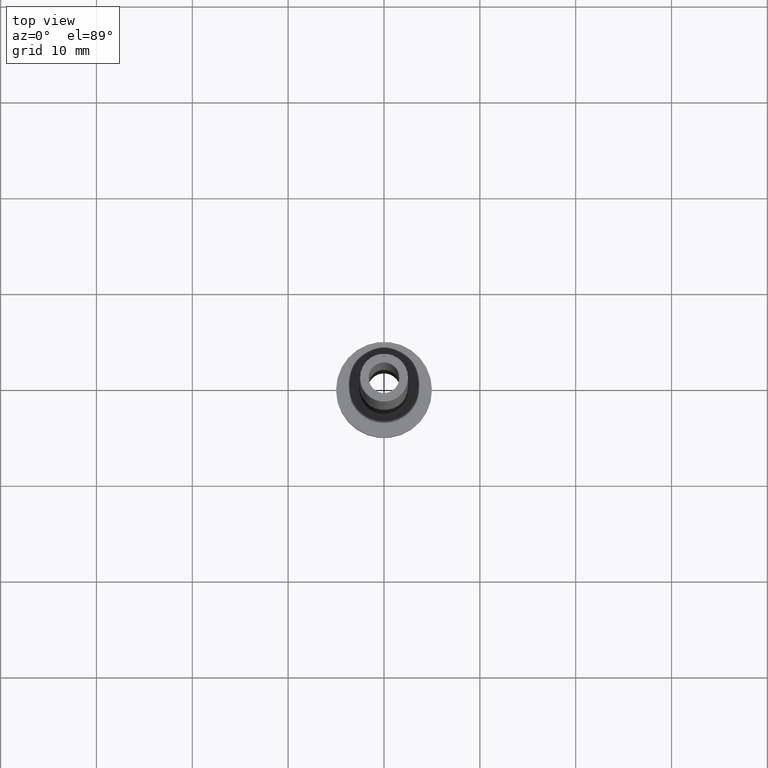
[diagram: clean part render]
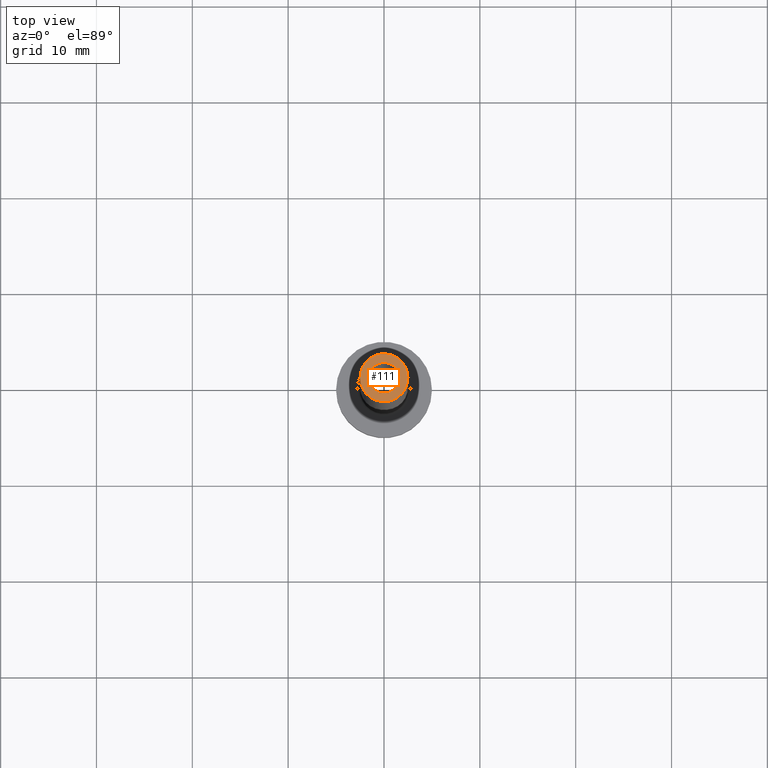
[diagram: same view with one face highlighted and labeled with its STEP entity id]
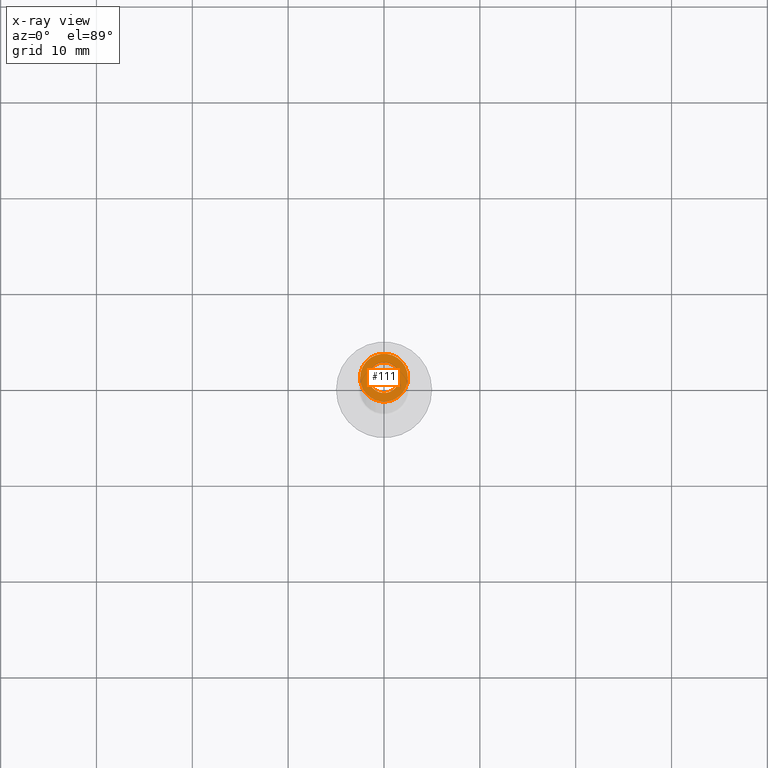
[diagram: x-ray of the same camera — body ghosted, the highlighted face saturated]
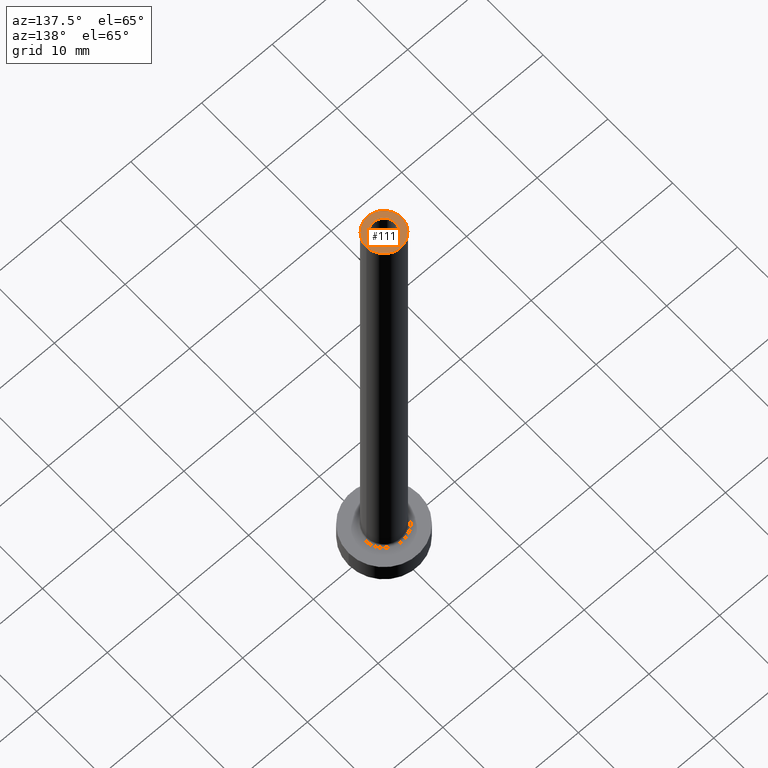
[diagram: same view with one face highlighted and labeled with its STEP entity id]
A machine part, top view. The second image highlights one B-rep face of the part: STEP entity #111.
The next image is the same camera in x-ray: the body ghosted, the highlighted face saturated — about 0% of this face is hidden behind the body in this view.
A second angle (auxiliary view) of the same face is appended — the face is thin or edge-on in the first view.
In plain terms, the highlighted planar face has unit normal (0, 0, 1).
Its self-contained STEP definition (entity closure, byte-faithful):
#8 = AXIS2_PLACEMENT_3D ( 'NONE', #140, #283, #71 ) ;
#11 = ORIENTED_EDGE ( 'NONE', *, *, #39, .F. ) ;
#24 = EDGE_LOOP ( 'NONE', ( #147, #52 ) ) ;
#27 = PLANE ( 'NONE',  #290 ) ;
#28 = CARTESIAN_POINT ( 'NONE',  ( -2.500000000000000000, 0.000000000000000000, 75.00000000000001421 ) ) ;
#34 = CIRCLE ( 'NONE', #432, 1.600000000000000089 ) ;
#39 = EDGE_CURVE ( 'NONE', #83, #210, #34, .T. ) ;
#42 = CARTESIAN_POINT ( 'NONE',  ( 1.600000000000000089, 1.959434878635764737E-16, 75.00000000000001421 ) ) ;
#51 = CARTESIAN_POINT ( 'NONE',  ( 0.000000000000000000, 0.000000000000000000, 75.00000000000001421 ) ) ;
#52 = ORIENTED_EDGE ( 'NONE', *, *, #407, .T. ) ;
#55 = CARTESIAN_POINT ( 'NONE',  ( 0.000000000000000000, 0.000000000000000000, 75.00000000000001421 ) ) ;
#71 = DIRECTION ( 'NONE',  ( 1.000000000000000000, 0.000000000000000000, 0.000000000000000000 ) ) ;
#76 = CARTESIAN_POINT ( 'NONE',  ( 0.000000000000000000, 0.000000000000000000, 75.00000000000001421 ) ) ;
#83 = VERTEX_POINT ( 'NONE', #42 ) ;
#111 = ADVANCED_FACE ( 'NONE', ( #360, #305 ), #27, .T. ) ;
#118 = DIRECTION ( 'NONE',  ( 0.000000000000000000, 0.000000000000000000, 1.000000000000000000 ) ) ;
#140 = CARTESIAN_POINT ( 'NONE',  ( 0.000000000000000000, 0.000000000000000000, 75.00000000000001421 ) ) ;
#147 = ORIENTED_EDGE ( 'NONE', *, *, #195, .T. ) ;
#172 = CIRCLE ( 'NONE', #392, 2.500000000000000000 ) ;
#179 = DIRECTION ( 'NONE',  ( 0.000000000000000000, 0.000000000000000000, 1.000000000000000000 ) ) ;
#180 = VERTEX_POINT ( 'NONE', #28 ) ;
#195 = EDGE_CURVE ( 'NONE', #180, #337, #172, .T. ) ;
#197 = DIRECTION ( 'NONE',  ( 0.000000000000000000, 0.000000000000000000, 1.000000000000000000 ) ) ;
#199 = CARTESIAN_POINT ( 'NONE',  ( 0.000000000000000000, 0.000000000000000000, 75.00000000000001421 ) ) ;
#210 = VERTEX_POINT ( 'NONE', #273 ) ;
#240 = DIRECTION ( 'NONE',  ( 1.000000000000000000, 0.000000000000000000, 0.000000000000000000 ) ) ;
#256 = EDGE_CURVE ( 'NONE', #210, #83, #429, .T. ) ;
#262 = EDGE_LOOP ( 'NONE', ( #276, #11 ) ) ;
#268 = CIRCLE ( 'NONE', #8, 2.500000000000000000 ) ;
#273 = CARTESIAN_POINT ( 'NONE',  ( -1.600000000000000089, 0.000000000000000000, 75.00000000000001421 ) ) ;
#276 = ORIENTED_EDGE ( 'NONE', *, *, #256, .F. ) ;
#279 = AXIS2_PLACEMENT_3D ( 'NONE', #76, #179, #284 ) ;
#283 = DIRECTION ( 'NONE',  ( 0.000000000000000000, 0.000000000000000000, 1.000000000000000000 ) ) ;
#284 = DIRECTION ( 'NONE',  ( 1.000000000000000000, 0.000000000000000000, 0.000000000000000000 ) ) ;
#290 = AXIS2_PLACEMENT_3D ( 'NONE', #55, #405, #308 ) ;
#305 = FACE_OUTER_BOUND ( 'NONE', #24, .T. ) ;
#308 = DIRECTION ( 'NONE',  ( 1.000000000000000000, 0.000000000000000000, -0.000000000000000000 ) ) ;
#322 = CARTESIAN_POINT ( 'NONE',  ( 2.500000000000000000, 3.061616997868383141E-16, 75.00000000000001421 ) ) ;
#336 = DIRECTION ( 'NONE',  ( 1.000000000000000000, 0.000000000000000000, 0.000000000000000000 ) ) ;
#337 = VERTEX_POINT ( 'NONE', #322 ) ;
#360 = FACE_BOUND ( 'NONE', #262, .T. ) ;
#392 = AXIS2_PLACEMENT_3D ( 'NONE', #199, #197, #240 ) ;
#405 = DIRECTION ( 'NONE',  ( 0.000000000000000000, 0.000000000000000000, 1.000000000000000000 ) ) ;
#407 = EDGE_CURVE ( 'NONE', #337, #180, #268, .T. ) ;
#429 = CIRCLE ( 'NONE', #279, 1.600000000000000089 ) ;
#432 = AXIS2_PLACEMENT_3D ( 'NONE', #51, #118, #336 ) ;